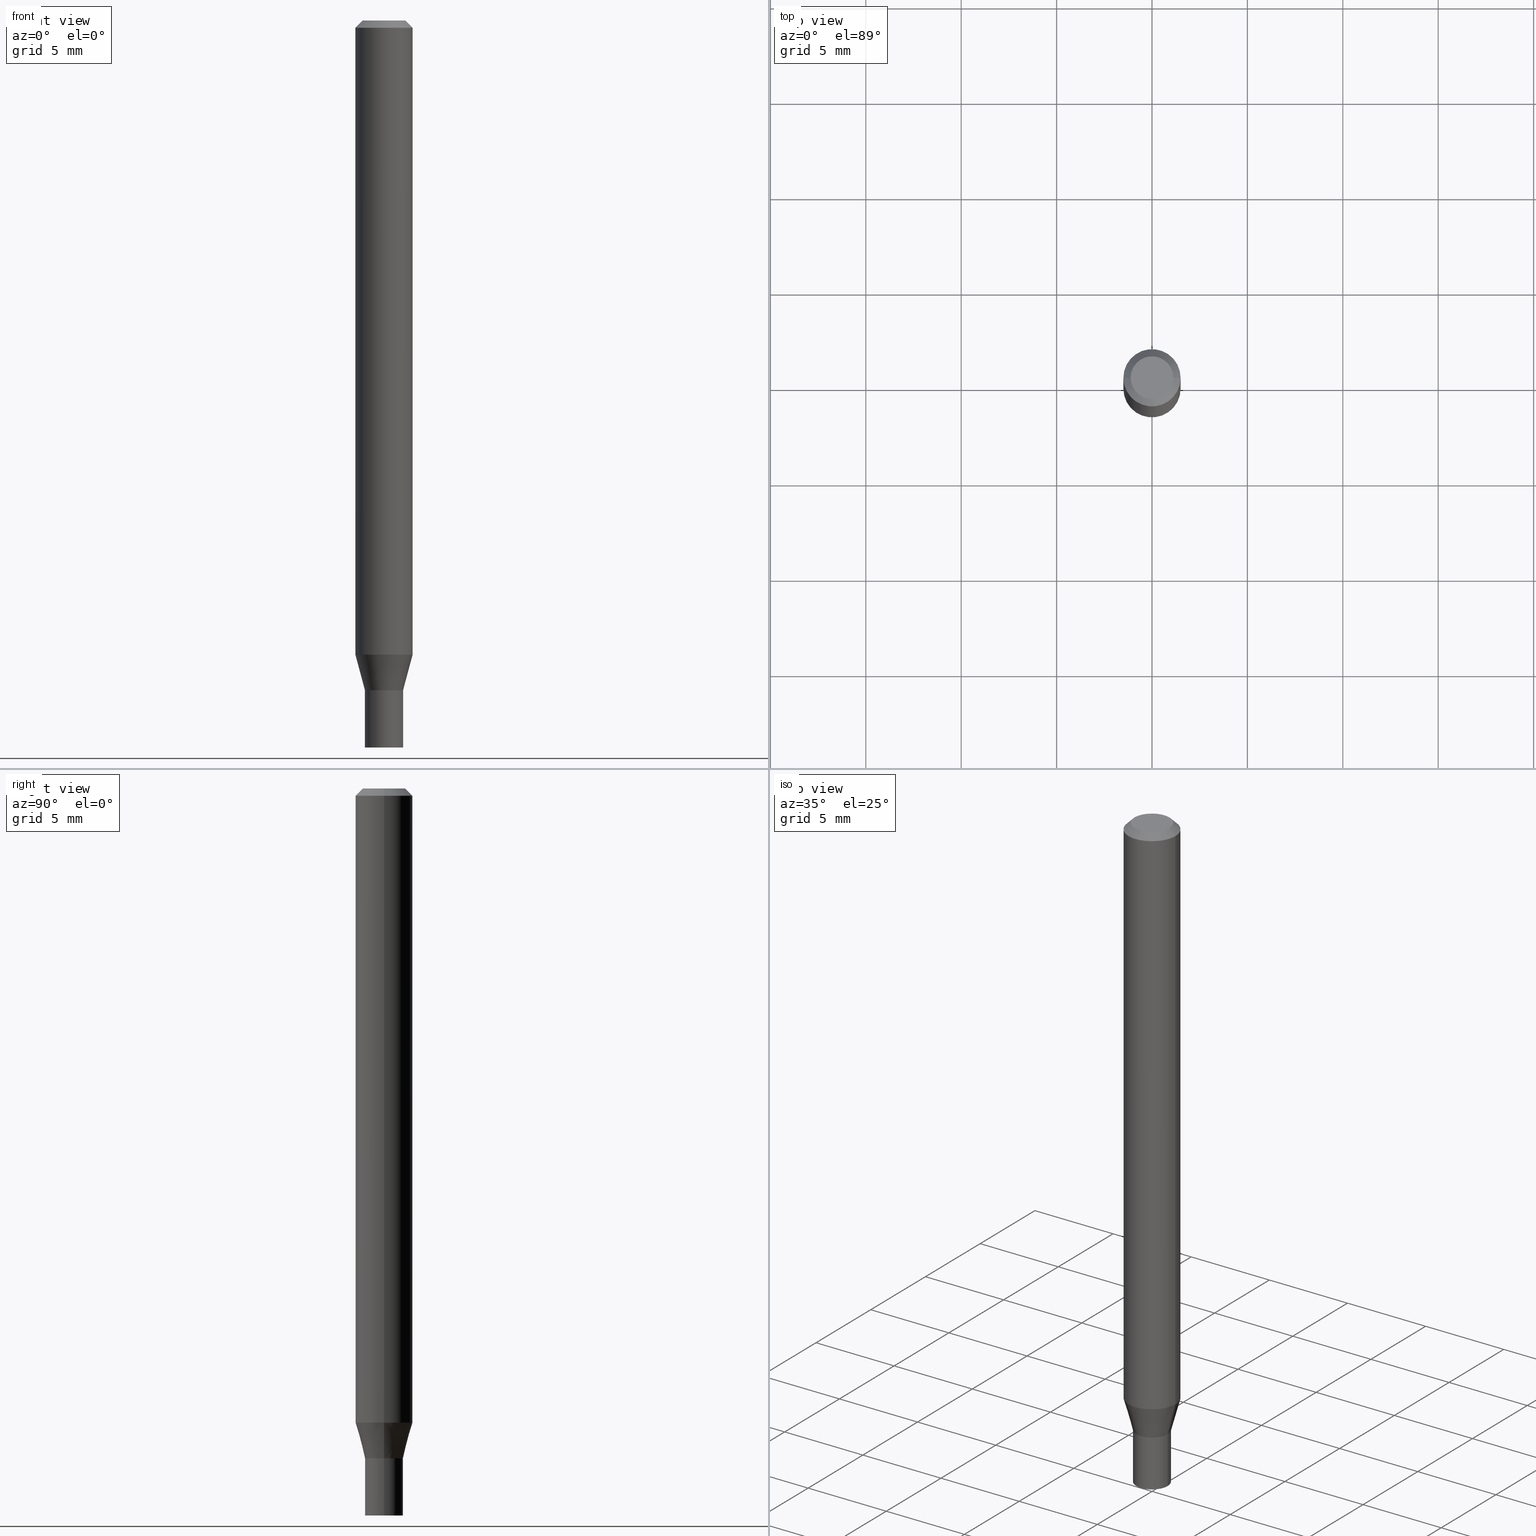
[diagram: canonical four-view strip — front | top / right | iso, engineering-drawing reading convention]
A machine part, canonical four-view strip (front | top / right | iso — engineering-drawing reading convention). The complete STEP part file that produces these views, byte-faithful:
ISO-10303-21;
HEADER;
FILE_DESCRIPTION (( 'STEP AP203' ),
    '1' );
FILE_NAME ('05123.STEP',
    '2024-03-14T18:01:29',
    ( '' ),
    ( '' ),
    'SwSTEP 2.0',
    'SolidWorks 2023',
    '' );
FILE_SCHEMA (( 'CONFIG_CONTROL_DESIGN' ));
ENDSEC;

DATA;
#1 = PRODUCT_DEFINITION_SHAPE ( 'NONE', 'NONE',  #325 ) ;
#2 = CONICAL_SURFACE ( 'NONE', #57, 0.03934999999999993364, 0.2617993877991493523 ) ;
#3 = EDGE_CURVE ( 'NONE', #344, #416, #32, .T. ) ;
#4 = CARTESIAN_POINT ( 'NONE',  ( 3.576687321579069994E-29, -5.368277968210015545E-15, -1.500000000000000222 ) ) ;
#5 = DIRECTION ( 'NONE',  ( -1.000000000000000000, 6.982962677686266711E-15, 0.000000000000000000 ) ) ;
#6 = ORIENTED_EDGE ( 'NONE', *, *, #408, .F. ) ;
#7 = CONICAL_SURFACE ( 'NONE', #315, 0.05904999999999999832, 0.7853981633974366217 ) ;
#8 = ORIENTED_EDGE ( 'NONE', *, *, #302, .T. ) ;
#9 = ADVANCED_FACE ( 'NONE', ( #128 ), #277, .T. ) ;
#10 = PERSON_AND_ORGANIZATION ( #350, #383 ) ;
#11 = APPLICATION_CONTEXT ( 'configuration controlled 3d designs of mechanical parts and assemblies' ) ;
#12 = PERSON_AND_ORGANIZATION ( #350, #383 ) ;
#13 = ORIENTED_EDGE ( 'NONE', *, *, #371, .F. ) ;
#14 =( NAMED_UNIT ( * ) SI_UNIT ( $, .STERADIAN. ) SOLID_ANGLE_UNIT ( ) );
#15 = EDGE_CURVE ( 'NONE', #55, #379, #212, .T. ) ;
#16 = VERTEX_POINT ( 'NONE', #236 ) ;
#17 = DATE_AND_TIME ( #441, #398 ) ;
#18 = AXIS2_PLACEMENT_3D ( 'NONE', #88, #449, #452 ) ;
#19 = COORDINATED_UNIVERSAL_TIME_OFFSET ( 5, 0, .BEHIND. ) ;
#20 = VERTEX_POINT ( 'NONE', #427 ) ;
#21 = DIRECTION ( 'NONE',  ( 2.445468806185136597E-29, -3.491481338843145583E-15, -1.000000000000000000 ) ) ;
#22 = CARTESIAN_POINT ( 'NONE',  ( 3.668203209277705088E-31, -5.237222008264718399E-17, -0.01499999999999999944 ) ) ;
#23 = VECTOR ( 'NONE', #318, 39.37007874015748854 ) ;
#24 = PERSON_AND_ORGANIZATION_ROLE ( 'classification_officer' ) ;
#25 = PLANE ( 'NONE',  #403 ) ;
#26 = DIRECTION ( 'NONE',  ( -2.445468806185136877E-29, 3.491481338843145188E-15, 1.000000000000000000 ) ) ;
#27 = DIRECTION ( 'NONE',  ( 1.000000000000000000, -6.982962677686265922E-15, 4.876176775795935793E-29 ) ) ;
#28 = ADVANCED_FACE ( 'NONE', ( #232 ), #71, .T. ) ;
#29 = LINE ( 'NONE', #33, #167 ) ;
#30 = CIRCLE ( 'NONE', #150, 0.03935000000000000303 ) ;
#31 = DIRECTION ( 'NONE',  ( -2.445468806185136597E-29, 3.491481338843145583E-15, 1.000000000000000000 ) ) ;
#32 = CIRCLE ( 'NONE', #151, 0.03885000000000000259 ) ;
#33 = CARTESIAN_POINT ( 'NONE',  ( -0.03885000000000000259, -4.548832209304543971E-15, -1.381900000000000128 ) ) ;
#34 = APPLICATION_CONTEXT ( 'configuration controlled 3d designs of mechanical parts and assemblies' ) ;
#35 = DIRECTION ( 'NONE',  ( -2.445468806185136877E-29, 3.491481338843145188E-15, 1.000000000000000000 ) ) ;
#36 = APPROVAL ( #377, 'UNSPECIFIED' ) ;
#37 = AXIS2_PLACEMENT_3D ( 'NONE', #282, #273, #431 ) ;
#38 = CARTESIAN_POINT ( 'NONE',  ( 0.03934999999999993364, -5.099657643514298173E-15, -1.381900000000000350 ) ) ;
#39 = ADVANCED_FACE ( 'NONE', ( #391 ), #158, .F. ) ;
#40 = DIRECTION ( 'NONE',  ( -2.445468806185136597E-29, 3.491481338843145583E-15, 1.000000000000000000 ) ) ;
#41 = ORIENTED_EDGE ( 'NONE', *, *, #417, .T. ) ;
#42 = CC_DESIGN_PERSON_AND_ORGANIZATION_ASSIGNMENT ( #331, #296, ( #338 ) ) ;
#43 = DIRECTION ( 'NONE',  ( 1.000000000000000000, -6.982962677686256455E-15, 0.000000000000000000 ) ) ;
#44 = CIRCLE ( 'NONE', #37, 0.03934999999999992670 ) ;
#45 = CC_DESIGN_APPROVAL ( #36, ( #325 ) ) ;
#46 = VERTEX_POINT ( 'NONE', #238 ) ;
#47 = ORIENTED_EDGE ( 'NONE', *, *, #264, .F. ) ;
#48 = COORDINATED_UNIVERSAL_TIME_OFFSET ( 5, 0, .BEHIND. ) ;
#49 = DIRECTION ( 'NONE',  ( -2.445468806185136597E-29, 3.491481338843145583E-15, 1.000000000000000000 ) ) ;
#50 = VECTOR ( 'NONE', #242, 39.37007874015748854 ) ;
#51 = CARTESIAN_POINT ( 'NONE',  ( 3.379393343267241015E-29, -4.824878062147344045E-15, -1.381900000000000350 ) ) ;
#52 = VECTOR ( 'NONE', #26, 39.37007874015748143 ) ;
#53 = VERTEX_POINT ( 'NONE', #126 ) ;
#54 = EDGE_LOOP ( 'NONE', ( #219, #439, #313, #351 ) ) ;
#55 = VERTEX_POINT ( 'NONE', #123 ) ;
#56 = DIRECTION ( 'NONE',  ( 1.000000000000000000, -6.982962677686256455E-15, 0.000000000000000000 ) ) ;
#57 = AXIS2_PLACEMENT_3D ( 'NONE', #51, #153, #43 ) ;
#58 = CARTESIAN_POINT ( 'NONE',  ( 3.379393343267239894E-29, -4.824878062147343257E-15, -1.381900000000000128 ) ) ;
#59 = LINE ( 'NONE', #463, #50 ) ;
#60 = ADVANCED_FACE ( 'NONE', ( #204 ), #136, .T. ) ;
#61 = DIRECTION ( 'NONE',  ( 1.000000000000000000, -6.982962677686266711E-15, 4.876176775795936353E-29 ) ) ;
#62 = FACE_OUTER_BOUND ( 'NONE', #112, .T. ) ;
#63 = DIRECTION ( 'NONE',  ( 1.000000000000000000, -6.982962677686265922E-15, 4.819687581474398999E-29 ) ) ;
#64 = AXIS2_PLACEMENT_3D ( 'NONE', #312, #349, #202 ) ;
#65 = CYLINDRICAL_SURFACE ( 'NONE', #84, 0.03935000000000000303 ) ;
#66 = EDGE_CURVE ( 'NONE', #16, #298, #163, .T. ) ;
#67 = CARTESIAN_POINT ( 'NONE',  ( 3.379393343267241015E-29, -4.824878062147344045E-15, -1.381900000000000350 ) ) ;
#68 = EDGE_CURVE ( 'NONE', #46, #222, #386, .T. ) ;
#69 = DIRECTION ( 'NONE',  ( 0.7071067811865392461, -7.319954787623227646E-15, -0.7071067811865557884 ) ) ;
#70 = VECTOR ( 'NONE', #281, 39.37007874015748143 ) ;
#71 = CONICAL_SURFACE ( 'NONE', #148, 0.05904999999999999832, 0.7853981633974366217 ) ;
#72 = DIRECTION ( 'NONE',  ( 2.445468806185136597E-29, -3.491481338843145583E-15, -1.000000000000000000 ) ) ;
#73 = EDGE_CURVE ( 'NONE', #53, #55, #231, .T. ) ;
#74 = VERTEX_POINT ( 'NONE', #311 ) ;
#75 = DIRECTION ( 'NONE',  ( 0.000000000000000000, 0.000000000000000000, 1.000000000000000000 ) ) ;
#76 = DIRECTION ( 'NONE',  ( 1.000000000000000000, -6.982962677686266711E-15, 4.876176775795936353E-29 ) ) ;
#77 = ORIENTED_EDGE ( 'NONE', *, *, #210, .F. ) ;
#78 = DIRECTION ( 'NONE',  ( 1.000000000000000000, 0.000000000000000000, 0.000000000000000000 ) ) ;
#79 = CIRCLE ( 'NONE', #160, 0.03935000000000000303 ) ;
#80 = EDGE_LOOP ( 'NONE', ( #418, #443 ) ) ;
#81 = MECHANICAL_CONTEXT ( 'NONE', #11, 'mechanical' ) ;
#82 = ORIENTED_EDGE ( 'NONE', *, *, #297, .F. ) ;
#83 = DATE_AND_TIME ( #121, #171 ) ;
#84 = AXIS2_PLACEMENT_3D ( 'NONE', #205, #31, #133 ) ;
#85 = CALENDAR_DATE ( 2024, 14, 3 ) ;
#86 = EDGE_CURVE ( 'NONE', #298, #20, #109, .T. ) ;
#87 = CARTESIAN_POINT ( 'NONE',  ( 0.03934999999999993364, -2.747795813669541281E-16, 1.918775561275697570E-30 ) ) ;
#88 = CARTESIAN_POINT ( 'NONE',  ( 3.379393343267239894E-29, -4.824878062147343257E-15, -1.381900000000000128 ) ) ;
#89 = PERSON_AND_ORGANIZATION ( #350, #383 ) ;
#90 = FACE_OUTER_BOUND ( 'NONE', #407, .T. ) ;
#91 = CLOSED_SHELL ( 'NONE', ( #423, #60, #28, #278, #454, #428, #415, #118, #218, #334, #203, #39 ) ) ;
#92 = AXIS2_PLACEMENT_3D ( 'NONE', #98, #243, #274 ) ;
#93 = CC_DESIGN_SECURITY_CLASSIFICATION ( #361, ( #338 ) ) ;
#94 = DIRECTION ( 'NONE',  ( -2.445468806185136597E-29, 3.491481338843145583E-15, 1.000000000000000000 ) ) ;
#95 = DIRECTION ( 'NONE',  ( -1.000000000000000000, 6.982962677686266711E-15, 0.000000000000000000 ) ) ;
#96 = DIRECTION ( 'NONE',  ( -2.445468806185136597E-29, 3.491481338843145583E-15, 1.000000000000000000 ) ) ;
#97 = CARTESIAN_POINT ( 'NONE',  ( 3.379393343267241015E-29, -4.824878062147344045E-15, -1.381900000000000350 ) ) ;
#98 = CARTESIAN_POINT ( 'NONE',  ( 0.000000000000000000, 0.000000000000000000, 0.000000000000000000 ) ) ;
#99 = EDGE_CURVE ( 'NONE', #216, #20, #106, .T. ) ;
#100 = DIRECTION ( 'NONE',  ( 1.000000000000000000, -6.982962677686269077E-15, 0.000000000000000000 ) ) ;
#101 = AXIS2_PLACEMENT_3D ( 'NONE', #247, #464, #175 ) ;
#102 = LINE ( 'NONE', #38, #23 ) ;
#103 = PRODUCT ( '05123', '05123', '', ( #81 ) ) ;
#104 = CARTESIAN_POINT ( 'NONE',  ( -8.641182519006283330E-45, 1.233731848647590289E-30, 3.533548453838708869E-16 ) ) ;
#105 = ADVANCED_FACE ( 'NONE', ( #401 ), #208, .F. ) ;
#106 = LINE ( 'NONE', #324, #70 ) ;
#107 = ORIENTED_EDGE ( 'NONE', *, *, #289, .T. ) ;
#108 = EDGE_CURVE ( 'NONE', #253, #379, #355, .T. ) ;
#109 = CIRCLE ( 'NONE', #199, 0.05904999999999999832 ) ;
#110 = CIRCLE ( 'NONE', #382, 0.03934999999999993364 ) ;
#111 = ORIENTED_EDGE ( 'NONE', *, *, #302, .F. ) ;
#112 = EDGE_LOOP ( 'NONE', ( #183, #341, #328, #187 ) ) ;
#113 =( NAMED_UNIT ( * ) PLANE_ANGLE_UNIT ( ) SI_UNIT ( $, .RADIAN. ) );
#114 = ORIENTED_EDGE ( 'NONE', *, *, #68, .F. ) ;
#115 = CC_DESIGN_PERSON_AND_ORGANIZATION_ASSIGNMENT ( #410, #444, ( #325 ) ) ;
#116 = ORIENTED_EDGE ( 'NONE', *, *, #445, .F. ) ;
#117 = APPROVAL_ROLE ( '' ) ;
#118 = ADVANCED_FACE ( 'NONE', ( #285 ), #7, .T. ) ;
#119 = CARTESIAN_POINT ( 'NONE',  ( 3.199599050756987901E-29, -4.568179462867591539E-15, -1.308378599090893157 ) ) ;
#120 = ORIENTED_EDGE ( 'NONE', *, *, #411, .F. ) ;
#121 = CALENDAR_DATE ( 2024, 14, 3 ) ;
#122 = ORIENTED_EDGE ( 'NONE', *, *, #319, .T. ) ;
#123 = CARTESIAN_POINT ( 'NONE',  ( -0.03935000000000000303, -4.751451468684432505E-15, -1.381900000000000128 ) ) ;
#124 = EDGE_LOOP ( 'NONE', ( #107, #291, #438, #192 ) ) ;
#125 = CARTESIAN_POINT ( 'NONE',  ( 3.379393343267241015E-29, -4.824878062147344045E-15, -1.381900000000000350 ) ) ;
#126 = CARTESIAN_POINT ( 'NONE',  ( -0.03935000000000000303, -4.751451468684432505E-15, -1.500000000000000222 ) ) ;
#127 = FACE_OUTER_BOUND ( 'NONE', #326, .T. ) ;
#128 = FACE_OUTER_BOUND ( 'NONE', #54, .T. ) ;
#129 = AXIS2_PLACEMENT_3D ( 'NONE', #288, #40, #360 ) ;
#130 = LOCAL_TIME ( 14, 1, 29.00000000000000000, #455 ) ;
#131 = CYLINDRICAL_SURFACE ( 'NONE', #346, 0.05904999999999999832 ) ;
#132 = DIRECTION ( 'NONE',  ( -1.000000000000000000, 6.982962677686265922E-15, -4.876176775795935793E-29 ) ) ;
#133 = DIRECTION ( 'NONE',  ( 1.000000000000000000, -6.982962677686266711E-15, 4.876176775795936353E-29 ) ) ;
#134 = CARTESIAN_POINT ( 'NONE',  ( 0.03934999999999992670, -5.097911902844875881E-15, -1.381400000000000183 ) ) ;
#135 = CARTESIAN_POINT ( 'NONE',  ( -0.05904999999999999832, -4.148603977401252046E-15, -1.308378599090893157 ) ) ;
#136 = CONICAL_SURFACE ( 'NONE', #461, 0.03885000000000000259, 0.7853981633974739252 ) ;
#137 = CARTESIAN_POINT ( 'NONE',  ( 3.075995059520799729E-16, 0.04404999999999999888, 2.287766971589489619E-17 ) ) ;
#138 = LINE ( 'NONE', #213, #425 ) ;
#139 = EDGE_LOOP ( 'NONE', ( #47, #255, #8, #409 ) ) ;
#140 = CIRCLE ( 'NONE', #459, 0.05904999999999999832 ) ;
#141 = ORIENTED_EDGE ( 'NONE', *, *, #375, .T. ) ;
#142 = DIRECTION ( 'NONE',  ( -2.445468806185136597E-29, 3.491481338843145583E-15, 1.000000000000000000 ) ) ;
#143 = EDGE_LOOP ( 'NONE', ( #77, #146, #155, #447 ) ) ;
#144 = LENGTH_MEASURE_WITH_UNIT ( LENGTH_MEASURE( 0.02539999999999999897 ), #336 );
#145 = EDGE_CURVE ( 'NONE', #413, #74, #138, .T. ) ;
#146 = ORIENTED_EDGE ( 'NONE', *, *, #180, .F. ) ;
#147 = CALENDAR_DATE ( 2024, 14, 3 ) ;
#148 = AXIS2_PLACEMENT_3D ( 'NONE', #168, #21, #95 ) ;
#149 = LINE ( 'NONE', #356, #435 ) ;
#150 = AXIS2_PLACEMENT_3D ( 'NONE', #436, #430, #100 ) ;
#151 = AXIS2_PLACEMENT_3D ( 'NONE', #162, #261, #56 ) ;
#152 = ORIENTED_EDGE ( 'NONE', *, *, #267, .T. ) ;
#153 = DIRECTION ( 'NONE',  ( -2.445468806185136597E-29, 3.491481338843145583E-15, 1.000000000000000000 ) ) ;
#154 = DIRECTION ( 'NONE',  ( 1.000000000000000000, -6.982962677686266711E-15, 4.876176775795936353E-29 ) ) ;
#155 = ORIENTED_EDGE ( 'NONE', *, *, #66, .T. ) ;
#156 = APPLICATION_PROTOCOL_DEFINITION ( 'international standard', 'config_control_design', 1994, #11 ) ;
#157 = MANIFOLD_SOLID_BREP ( 'Body-Move/Copy2[1]', #362 ) ;
#158 = CYLINDRICAL_SURFACE ( 'NONE', #308, 0.03934999999999993364 ) ;
#159 = COORDINATED_UNIVERSAL_TIME_OFFSET ( 5, 0, .BEHIND. ) ;
#160 = AXIS2_PLACEMENT_3D ( 'NONE', #174, #320, #466 ) ;
#161 = ORIENTED_EDGE ( 'NONE', *, *, #3, .F. ) ;
#162 = CARTESIAN_POINT ( 'NONE',  ( 3.379393343267239894E-29, -4.824878062147343257E-15, -1.381900000000000128 ) ) ;
#163 = LINE ( 'NONE', #347, #252 ) ;
#164 = DIRECTION ( 'NONE',  ( 0.7071067811865656694, -2.468850131082446387E-15, 0.7071067811865294761 ) ) ;
#165 = DIRECTION ( 'NONE',  ( -2.438088387897960049E-29, 3.491481338843145188E-15, 1.000000000000000000 ) ) ;
#166 = FACE_OUTER_BOUND ( 'NONE', #440, .T. ) ;
#167 = VECTOR ( 'NONE', #314, 39.37007874015748143 ) ;
#168 = CARTESIAN_POINT ( 'NONE',  ( 3.668203209277705088E-31, -5.237222008264718399E-17, -0.01499999999999999944 ) ) ;
#169 = CIRCLE ( 'NONE', #284, 0.05904999999999999832 ) ;
#170 = DATE_AND_TIME ( #85, #405 ) ;
#171 = LOCAL_TIME ( 14, 1, 29.00000000000000000, #19 ) ;
#172 = DIRECTION ( 'NONE',  ( 1.000000000000000000, -6.982962677686258033E-15, 0.000000000000000000 ) ) ;
#173 = CARTESIAN_POINT ( 'NONE',  ( 3.199599050756987901E-29, -4.568179462867591539E-15, -1.308378599090893157 ) ) ;
#174 = CARTESIAN_POINT ( 'NONE',  ( 3.379393343267239894E-29, -4.824878062147343257E-15, -1.381900000000000128 ) ) ;
#175 = DIRECTION ( 'NONE',  ( 1.000000000000000000, -6.982962677686265922E-15, 4.819687581474398999E-29 ) ) ;
#176 = AXIS2_PLACEMENT_3D ( 'NONE', #303, #195, #154 ) ;
#177 = DIRECTION ( 'NONE',  ( 2.438088387897960049E-29, -3.491481338843145188E-15, -1.000000000000000000 ) ) ;
#178 = ORIENTED_EDGE ( 'NONE', *, *, #402, .F. ) ;
#179 = ORIENTED_EDGE ( 'NONE', *, *, #375, .F. ) ;
#180 = EDGE_CURVE ( 'NONE', #16, #340, #327, .T. ) ;
#181 = APPROVAL_DATE_TIME ( #17, #384 ) ;
#182 = CONICAL_SURFACE ( 'NONE', #196, 0.03934999999999993364, 0.2617993877991493523 ) ;
#183 = ORIENTED_EDGE ( 'NONE', *, *, #380, .T. ) ;
#184 = CARTESIAN_POINT ( 'NONE',  ( 3.379393343267239894E-29, -4.824878062147343257E-15, -1.381900000000000128 ) ) ;
#185 = EDGE_LOOP ( 'NONE', ( #6, #41, #122, #120 ) ) ;
#186 = EDGE_LOOP ( 'NONE', ( #13, #141, #385, #116 ) ) ;
#187 = ORIENTED_EDGE ( 'NONE', *, *, #108, .F. ) ;
#188 = DIRECTION ( 'NONE',  ( 1.000000000000000000, -6.982962677686256455E-15, 0.000000000000000000 ) ) ;
#189 = ORIENTED_EDGE ( 'NONE', *, *, #339, .T. ) ;
#190 = CIRCLE ( 'NONE', #437, 0.03934999999999993364 ) ;
#191 = FACE_OUTER_BOUND ( 'NONE', #258, .T. ) ;
#192 = ORIENTED_EDGE ( 'NONE', *, *, #215, .F. ) ;
#193 = APPLICATION_PROTOCOL_DEFINITION ( 'international standard', 'config_control_design', 1994, #34 ) ;
#194 = EDGE_LOOP ( 'NONE', ( #263, #268, #178, #223 ) ) ;
#195 = DIRECTION ( 'NONE',  ( -2.445468806185136597E-29, 3.491481338843145583E-15, 1.000000000000000000 ) ) ;
#196 = AXIS2_PLACEMENT_3D ( 'NONE', #67, #220, #188 ) ;
#197 = ORIENTED_EDGE ( 'NONE', *, *, #86, .F. ) ;
#198 = DIRECTION ( 'NONE',  ( 1.000000000000000000, -6.982962677686266711E-15, 4.876176775795935793E-29 ) ) ;
#199 = AXIS2_PLACEMENT_3D ( 'NONE', #22, #309, #323 ) ;
#200 = CC_DESIGN_PERSON_AND_ORGANIZATION_ASSIGNMENT ( #12, #381, ( #103 ) ) ;
#201 = APPROVAL ( #394, 'UNSPECIFIED' ) ;
#202 = DIRECTION ( 'NONE',  ( 1.000000000000000000, -6.982962677686269077E-15, 0.000000000000000000 ) ) ;
#203 = ADVANCED_FACE ( 'NONE', ( #363 ), #412, .T. ) ;
#204 = FACE_OUTER_BOUND ( 'NONE', #194, .T. ) ;
#205 = CARTESIAN_POINT ( 'NONE',  ( 0.000000000000000000, 0.000000000000000000, 0.000000000000000000 ) ) ;
#206 = AXIS2_PLACEMENT_3D ( 'NONE', #184, #373, #433 ) ;
#207 = CARTESIAN_POINT ( 'NONE',  ( 3.378170608864148213E-29, -4.823132321477921753E-15, -1.381400000000000183 ) ) ;
#208 = PLANE ( 'NONE',  #250 ) ;
#209 = CARTESIAN_POINT ( 'NONE',  ( 0.05904999999999999832, -4.980523408984964882E-15, -1.308378599090893157 ) ) ;
#210 = EDGE_CURVE ( 'NONE', #340, #20, #358, .T. ) ;
#211 = APPROVAL_PERSON_ORGANIZATION ( #300, #36, #342 ) ;
#212 = CIRCLE ( 'NONE', #18, 0.03935000000000000303 ) ;
#213 = CARTESIAN_POINT ( 'NONE',  ( -0.03934999999999993364, 2.795985665215989516E-16, -1.935600958015302139E-30 ) ) ;
#214 = ORIENTED_EDGE ( 'NONE', *, *, #289, .F. ) ;
#215 = EDGE_CURVE ( 'NONE', #46, #216, #102, .T. ) ;
#216 = VERTEX_POINT ( 'NONE', #209 ) ;
#217 = DATE_TIME_ROLE ( 'creation_date' ) ;
#218 = ADVANCED_FACE ( 'NONE', ( #245 ), #246, .F. ) ;
#219 = ORIENTED_EDGE ( 'NONE', *, *, #73, .F. ) ;
#220 = DIRECTION ( 'NONE',  ( -2.445468806185136597E-29, 3.491481338843145583E-15, 1.000000000000000000 ) ) ;
#221 = AXIS2_PLACEMENT_3D ( 'NONE', #104, #400, #63 ) ;
#222 = VERTEX_POINT ( 'NONE', #134 ) ;
#223 = ORIENTED_EDGE ( 'NONE', *, *, #319, .F. ) ;
#224 = CARTESIAN_POINT ( 'NONE',  ( 0.000000000000000000, 0.000000000000000000, 0.000000000000000000 ) ) ;
#225 = CARTESIAN_POINT ( 'NONE',  ( 3.668203209277705088E-31, -5.237222008264718399E-17, -0.01499999999999999944 ) ) ;
#226 = ORIENTED_EDGE ( 'NONE', *, *, #99, .T. ) ;
#227 = FACE_OUTER_BOUND ( 'NONE', #124, .T. ) ;
#228 = APPROVAL_PERSON_ORGANIZATION ( #306, #201, #239 ) ;
#229 = CARTESIAN_POINT ( 'NONE',  ( 0.000000000000000000, 0.000000000000000000, 0.000000000000000000 ) ) ;
#230 = SHAPE_DEFINITION_REPRESENTATION ( #1, #266 ) ;
#231 = LINE ( 'NONE', #387, #299 ) ;
#232 = FACE_OUTER_BOUND ( 'NONE', #139, .T. ) ;
#233 = CARTESIAN_POINT ( 'NONE',  ( -0.05904999999999999832, -1.890700356008780013E-15, -0.01499999999999999944 ) ) ;
#234 = AXIS2_PLACEMENT_3D ( 'NONE', #207, #397, #172 ) ;
#235 = AXIS2_PLACEMENT_3D ( 'NONE', #224, #75, #78 ) ;
#236 = CARTESIAN_POINT ( 'NONE',  ( -0.04404999999999999888, 3.337856159934040055E-16, 3.533548453838686682E-16 ) ) ;
#237 = CARTESIAN_POINT ( 'NONE',  ( 0.03935000000000000303, -5.099657643514298173E-15, -1.381900000000000128 ) ) ;
#238 = CARTESIAN_POINT ( 'NONE',  ( 0.03934999999999993364, -5.099657643514298173E-15, -1.381900000000000350 ) ) ;
#239 = APPROVAL_ROLE ( '' ) ;
#240 = CARTESIAN_POINT ( 'NONE',  ( 0.04404999999999999888, -3.798447818264454163E-16, 3.533548453838733521E-16 ) ) ;
#241 = CC_DESIGN_DATE_AND_TIME_ASSIGNMENT ( #256, #217, ( #325 ) ) ;
#242 = DIRECTION ( 'NONE',  ( -0.2588190451025206285, 5.211531920934544731E-15, 0.9659258262890682012 ) ) ;
#243 = DIRECTION ( 'NONE',  ( -2.445468806185136597E-29, 3.491481338843145583E-15, 1.000000000000000000 ) ) ;
#244 = AXIS2_PLACEMENT_3D ( 'NONE', #353, #165, #27 ) ;
#245 = FACE_OUTER_BOUND ( 'NONE', #366, .T. ) ;
#246 = PLANE ( 'NONE',  #275 ) ;
#247 = CARTESIAN_POINT ( 'NONE',  ( -8.641182519006283330E-45, 1.233731848647590289E-30, 3.533548453838708869E-16 ) ) ;
#248 = DIRECTION ( 'NONE',  ( 1.000000000000000000, -6.982962677686265922E-15, 4.876176775795935793E-29 ) ) ;
#249 = ORIENTED_EDGE ( 'NONE', *, *, #145, .T. ) ;
#250 = AXIS2_PLACEMENT_3D ( 'NONE', #4, #322, #248 ) ;
#251 = EDGE_CURVE ( 'NONE', #53, #253, #30, .T. ) ;
#252 = VECTOR ( 'NONE', #265, 39.37007874015748143 ) ;
#253 = VERTEX_POINT ( 'NONE', #396 ) ;
#254 = ORIENTED_EDGE ( 'NONE', *, *, #402, .T. ) ;
#255 = ORIENTED_EDGE ( 'NONE', *, *, #210, .T. ) ;
#256 = DATE_AND_TIME ( #147, #451 ) ;
#257 = CIRCLE ( 'NONE', #64, 0.03935000000000000303 ) ;
#258 = EDGE_LOOP ( 'NONE', ( #189, #406, #111, #370 ) ) ;
#259 =( CONVERSION_BASED_UNIT ( 'INCH', #144 ) LENGTH_UNIT ( ) NAMED_UNIT ( #270 ) );
#260 = LINE ( 'NONE', #421, #442 ) ;
#261 = DIRECTION ( 'NONE',  ( -2.445468806185136597E-29, 3.491481338843145583E-15, 1.000000000000000000 ) ) ;
#262 = COORDINATED_UNIVERSAL_TIME_OFFSET ( 5, 0, .BEHIND. ) ;
#263 = ORIENTED_EDGE ( 'NONE', *, *, #3, .T. ) ;
#264 = EDGE_CURVE ( 'NONE', #340, #16, #337, .T. ) ;
#265 = DIRECTION ( 'NONE',  ( -0.7071067811865392461, 2.468850131082170286E-15, -0.7071067811865557884 ) ) ;
#266 = ADVANCED_BREP_SHAPE_REPRESENTATION ( '05123', ( #157, #465, #235 ), #301 ) ;
#267 = EDGE_CURVE ( 'NONE', #379, #55, #79, .T. ) ;
#268 = ORIENTED_EDGE ( 'NONE', *, *, #408, .T. ) ;
#269 = DATE_AND_TIME ( #279, #130 ) ;
#270 = DIMENSIONAL_EXPONENTS ( 1.000000000000000000, 0.000000000000000000, 0.000000000000000000, 0.000000000000000000, 0.000000000000000000, 0.000000000000000000, 0.000000000000000000 ) ;
#271 = DIRECTION ( 'NONE',  ( 1.000000000000000000, -6.982962677686256455E-15, 0.000000000000000000 ) ) ;
#272 = CYLINDRICAL_SURFACE ( 'NONE', #176, 0.05904999999999999832 ) ;
#273 = DIRECTION ( 'NONE',  ( -2.445468806185136597E-29, 3.491481338843145583E-15, 1.000000000000000000 ) ) ;
#274 = DIRECTION ( 'NONE',  ( 1.000000000000000000, -6.982962677686266711E-15, 4.876176775795935793E-29 ) ) ;
#275 = AXIS2_PLACEMENT_3D ( 'NONE', #137, #177, #132 ) ;
#276 = VERTEX_POINT ( 'NONE', #135 ) ;
#277 = CYLINDRICAL_SURFACE ( 'NONE', #458, 0.03935000000000000303 ) ;
#278 = ADVANCED_FACE ( 'NONE', ( #191 ), #272, .T. ) ;
#279 = CALENDAR_DATE ( 2024, 14, 3 ) ;
#280 = DIRECTION ( 'NONE',  ( -2.445468806185136597E-29, 3.491481338843145583E-15, 1.000000000000000000 ) ) ;
#281 = DIRECTION ( 'NONE',  ( -2.445468806185136877E-29, 3.491481338843145188E-15, 1.000000000000000000 ) ) ;
#282 = CARTESIAN_POINT ( 'NONE',  ( 3.378170608864148213E-29, -4.823132321477921753E-15, -1.381400000000000183 ) ) ;
#283 = CARTESIAN_POINT ( 'NONE',  ( 3.668203209277705088E-31, -5.237222008264718399E-17, -0.01499999999999999944 ) ) ;
#284 = AXIS2_PLACEMENT_3D ( 'NONE', #173, #280, #393 ) ;
#285 = FACE_OUTER_BOUND ( 'NONE', #143, .T. ) ;
#286 = ADVANCED_FACE ( 'NONE', ( #90 ), #25, .F. ) ;
#287 = CARTESIAN_POINT ( 'NONE',  ( 0.05904999999999999832, -4.574846268510561447E-16, -0.01499999999999999944 ) ) ;
#288 = CARTESIAN_POINT ( 'NONE',  ( 3.379393343267239894E-29, -4.824878062147343257E-15, -1.381900000000000128 ) ) ;
#289 = EDGE_CURVE ( 'NONE', #46, #413, #190, .T. ) ;
#290 = VECTOR ( 'NONE', #35, 39.37007874015748143 ) ;
#291 = ORIENTED_EDGE ( 'NONE', *, *, #371, .T. ) ;
#292 = CC_DESIGN_APPROVAL ( #201, ( #361 ) ) ;
#293 = ORIENTED_EDGE ( 'NONE', *, *, #417, .F. ) ;
#294 = CARTESIAN_POINT ( 'NONE',  ( -0.03885000000000000259, -4.546182982130432770E-15, -1.381900000000000128 ) ) ;
#295 = ORIENTED_EDGE ( 'NONE', *, *, #68, .T. ) ;
#296 = PERSON_AND_ORGANIZATION_ROLE ( 'creator' ) ;
#297 = EDGE_CURVE ( 'NONE', #276, #298, #260, .T. ) ;
#298 = VERTEX_POINT ( 'NONE', #233 ) ;
#299 = VECTOR ( 'NONE', #345, 39.37007874015748143 ) ;
#300 = PERSON_AND_ORGANIZATION ( #350, #383 ) ;
#301 =( GEOMETRIC_REPRESENTATION_CONTEXT ( 3 ) GLOBAL_UNCERTAINTY_ASSIGNED_CONTEXT ( ( #365 ) ) GLOBAL_UNIT_ASSIGNED_CONTEXT ( ( #259, #113, #14 ) ) REPRESENTATION_CONTEXT ( 'NONE', 'WORKASPACE' ) );
#302 = EDGE_CURVE ( 'NONE', #20, #298, #140, .T. ) ;
#303 = CARTESIAN_POINT ( 'NONE',  ( 0.000000000000000000, 0.000000000000000000, 0.000000000000000000 ) ) ;
#304 = DIRECTION ( 'NONE',  ( 2.438088387897960049E-29, -3.491481338843145188E-15, -1.000000000000000000 ) ) ;
#305 = EDGE_LOOP ( 'NONE', ( #332, #214, #295, #254 ) ) ;
#306 = PERSON_AND_ORGANIZATION ( #350, #383 ) ;
#307 = APPROVAL_PERSON_ORGANIZATION ( #10, #384, #117 ) ;
#308 = AXIS2_PLACEMENT_3D ( 'NONE', #229, #422, #198 ) ;
#309 = DIRECTION ( 'NONE',  ( -2.445468806185136597E-29, 3.491481338843145583E-15, 1.000000000000000000 ) ) ;
#310 = CARTESIAN_POINT ( 'NONE',  ( 2.747795813669883942E-16, 0.03934999999999518050, -1.381900000000000350 ) ) ;
#311 = CARTESIAN_POINT ( 'NONE',  ( -0.03934999999999992670, -4.543533754956323146E-15, -1.381400000000000183 ) ) ;
#312 = CARTESIAN_POINT ( 'NONE',  ( 3.668203209277704895E-29, -5.237222008264718177E-15, -1.500000000000000222 ) ) ;
#313 = ORIENTED_EDGE ( 'NONE', *, *, #108, .T. ) ;
#314 = DIRECTION ( 'NONE',  ( -0.7071067811865656694, 7.493145998870420424E-15, 0.7071067811865294761 ) ) ;
#315 = AXIS2_PLACEMENT_3D ( 'NONE', #283, #72, #5 ) ;
#316 = DIRECTION ( 'NONE',  ( -2.445468806185136597E-29, 3.491481338843145583E-15, 1.000000000000000000 ) ) ;
#317 = CARTESIAN_POINT ( 'NONE',  ( 0.03885000000000000259, -5.096166162175454377E-15, -1.381900000000000128 ) ) ;
#318 = DIRECTION ( 'NONE',  ( 0.2588190451025206285, 1.565188264969627095E-15, 0.9659258262890682012 ) ) ;
#319 = EDGE_CURVE ( 'NONE', #344, #222, #149, .T. ) ;
#320 = DIRECTION ( 'NONE',  ( -2.445468806185136597E-29, 3.491481338843145583E-15, 1.000000000000000000 ) ) ;
#321 = AXIS2_PLACEMENT_3D ( 'NONE', #119, #142, #372 ) ;
#322 = DIRECTION ( 'NONE',  ( -2.438088387897960049E-29, 3.491481338843145188E-15, 1.000000000000000000 ) ) ;
#323 = DIRECTION ( 'NONE',  ( 1.000000000000000000, -6.982962677686266711E-15, 0.000000000000000000 ) ) ;
#324 = CARTESIAN_POINT ( 'NONE',  ( 0.05904999999999999832, -4.123439461173740327E-16, 2.879382386107500220E-30 ) ) ;
#325 = PRODUCT_DEFINITION ( 'UNKNOWN', '', #338, #330 ) ;
#326 = EDGE_LOOP ( 'NONE', ( #82, #374, #226, #197 ) ) ;
#327 = CIRCLE ( 'NONE', #101, 0.04404999999999999888 ) ;
#328 = ORIENTED_EDGE ( 'NONE', *, *, #267, .F. ) ;
#329 = CC_DESIGN_APPROVAL ( #384, ( #338 ) ) ;
#330 = DESIGN_CONTEXT ( 'detailed design', #34, 'design' ) ;
#331 = PERSON_AND_ORGANIZATION ( #350, #383 ) ;
#332 = ORIENTED_EDGE ( 'NONE', *, *, #145, .F. ) ;
#333 = EDGE_LOOP ( 'NONE', ( #161, #293 ) ) ;
#334 = ADVANCED_FACE ( 'NONE', ( #456 ), #429, .F. ) ;
#335 = ORIENTED_EDGE ( 'NONE', *, *, #264, .T. ) ;
#336 =( LENGTH_UNIT ( ) NAMED_UNIT ( * ) SI_UNIT ( $, .METRE. ) );
#337 = CIRCLE ( 'NONE', #221, 0.04404999999999999888 ) ;
#338 = PRODUCT_DEFINITION_FORMATION_WITH_SPECIFIED_SOURCE ( 'ANY', '', #103, .NOT_KNOWN. ) ;
#339 = EDGE_CURVE ( 'NONE', #216, #276, #169, .T. ) ;
#340 = VERTEX_POINT ( 'NONE', #240 ) ;
#341 = ORIENTED_EDGE ( 'NONE', *, *, #73, .T. ) ;
#342 = APPROVAL_ROLE ( '' ) ;
#343 = CARTESIAN_POINT ( 'NONE',  ( 0.000000000000000000, 0.000000000000000000, 0.000000000000000000 ) ) ;
#344 = VERTEX_POINT ( 'NONE', #317 ) ;
#345 = DIRECTION ( 'NONE',  ( -2.445468806185136877E-29, 3.491481338843145188E-15, 1.000000000000000000 ) ) ;
#346 = AXIS2_PLACEMENT_3D ( 'NONE', #426, #94, #76 ) ;
#347 = CARTESIAN_POINT ( 'NONE',  ( -0.05904999999999999832, 3.599717260347268549E-16, -0.01499999999999999944 ) ) ;
#348 = DIRECTION ( 'NONE',  ( -2.445468806185136877E-29, 3.491481338843145188E-15, 1.000000000000000000 ) ) ;
#349 = DIRECTION ( 'NONE',  ( -2.445468806185136597E-29, 3.491481338843145583E-15, 1.000000000000000000 ) ) ;
#350 = PERSON ( 'UNSPECIFIED', 'UNSPECIFIED', 'UNSPECIFIED', ('UNSPECIFIED'), ('UNSPECIFIED'), ('UNSPECIFIED') ) ;
#351 = ORIENTED_EDGE ( 'NONE', *, *, #15, .F. ) ;
#352 = SECURITY_CLASSIFICATION_LEVEL ( 'unclassified' ) ;
#353 = CARTESIAN_POINT ( 'NONE',  ( 3.379393343267239894E-29, -4.824878062147343257E-15, -1.381900000000000128 ) ) ;
#354 = CIRCLE ( 'NONE', #234, 0.03934999999999992670 ) ;
#355 = LINE ( 'NONE', #404, #290 ) ;
#356 = CARTESIAN_POINT ( 'NONE',  ( 0.03885000000000000259, -5.096166162175454377E-15, -1.381900000000000128 ) ) ;
#357 = FACE_OUTER_BOUND ( 'NONE', #186, .T. ) ;
#358 = LINE ( 'NONE', #287, #369 ) ;
#359 = CYLINDRICAL_SURFACE ( 'NONE', #92, 0.03934999999999993364 ) ;
#360 = DIRECTION ( 'NONE',  ( 1.000000000000000000, -6.982962677686256455E-15, 0.000000000000000000 ) ) ;
#361 = SECURITY_CLASSIFICATION ( '', '', #352 ) ;
#362 = CLOSED_SHELL ( 'NONE', ( #392, #105, #9, #286 ) ) ;
#363 = FACE_OUTER_BOUND ( 'NONE', #185, .T. ) ;
#364 = ORIENTED_EDGE ( 'NONE', *, *, #180, .T. ) ;
#365 = UNCERTAINTY_MEASURE_WITH_UNIT (LENGTH_MEASURE( 1.000000000000000082E-05 ), #259, 'distance_accuracy_value', 'NONE');
#366 = EDGE_LOOP ( 'NONE', ( #364, #335 ) ) ;
#367 = APPROVAL_DATE_TIME ( #83, #36 ) ;
#368 = CC_DESIGN_DATE_AND_TIME_ASSIGNMENT ( #269, #388, ( #361 ) ) ;
#369 = VECTOR ( 'NONE', #69, 39.37007874015748143 ) ;
#370 = ORIENTED_EDGE ( 'NONE', *, *, #99, .F. ) ;
#371 = EDGE_CURVE ( 'NONE', #413, #276, #59, .T. ) ;
#372 = DIRECTION ( 'NONE',  ( 1.000000000000000000, -6.982962677686273021E-15, 0.000000000000000000 ) ) ;
#373 = DIRECTION ( 'NONE',  ( -2.445468806185136597E-29, 3.491481338843145583E-15, 1.000000000000000000 ) ) ;
#374 = ORIENTED_EDGE ( 'NONE', *, *, #445, .T. ) ;
#375 = EDGE_CURVE ( 'NONE', #413, #46, #110, .T. ) ;
#376 = APPROVAL_STATUS ( 'not_yet_approved' ) ;
#377 = APPROVAL_STATUS ( 'not_yet_approved' ) ;
#378 = DIRECTION ( 'NONE',  ( -2.445468806185136597E-29, 3.491481338843145583E-15, 1.000000000000000000 ) ) ;
#379 = VERTEX_POINT ( 'NONE', #237 ) ;
#380 = EDGE_CURVE ( 'NONE', #253, #53, #257, .T. ) ;
#381 = PERSON_AND_ORGANIZATION_ROLE ( 'design_owner' ) ;
#382 = AXIS2_PLACEMENT_3D ( 'NONE', #97, #96, #395 ) ;
#383 = ORGANIZATION ( 'UNSPECIFIED', 'UNSPECIFIED', '' ) ;
#384 = APPROVAL ( #376, 'UNSPECIFIED' ) ;
#385 = ORIENTED_EDGE ( 'NONE', *, *, #215, .T. ) ;
#386 = LINE ( 'NONE', #87, #52 ) ;
#387 = CARTESIAN_POINT ( 'NONE',  ( -0.03935000000000000303, 2.795985665215994447E-16, -1.935600958015305291E-30 ) ) ;
#388 = DATE_TIME_ROLE ( 'classification_date' ) ;
#389 = DIRECTION ( 'NONE',  ( 1.000000000000000000, -6.982962677686256455E-15, 0.000000000000000000 ) ) ;
#390 = DIRECTION ( 'NONE',  ( 1.000000000000000000, -6.982962677686266711E-15, 0.000000000000000000 ) ) ;
#391 = FACE_OUTER_BOUND ( 'NONE', #305, .T. ) ;
#392 = ADVANCED_FACE ( 'NONE', ( #62 ), #65, .T. ) ;
#393 = DIRECTION ( 'NONE',  ( 1.000000000000000000, -6.982962677686273021E-15, 0.000000000000000000 ) ) ;
#394 = APPROVAL_STATUS ( 'not_yet_approved' ) ;
#395 = DIRECTION ( 'NONE',  ( 1.000000000000000000, -6.982962677686256455E-15, 0.000000000000000000 ) ) ;
#396 = CARTESIAN_POINT ( 'NONE',  ( 0.03935000000000000303, -5.512001589631673094E-15, -1.500000000000000222 ) ) ;
#397 = DIRECTION ( 'NONE',  ( -2.445468806185136597E-29, 3.491481338843145583E-15, 1.000000000000000000 ) ) ;
#398 = LOCAL_TIME ( 14, 1, 29.00000000000000000, #48 ) ;
#399 = CC_DESIGN_PERSON_AND_ORGANIZATION_ASSIGNMENT ( #414, #446, ( #338 ) ) ;
#400 = DIRECTION ( 'NONE',  ( -2.445468806185136597E-29, 3.491481338843145583E-15, 1.000000000000000000 ) ) ;
#401 = FACE_OUTER_BOUND ( 'NONE', #80, .T. ) ;
#402 = EDGE_CURVE ( 'NONE', #222, #74, #354, .T. ) ;
#403 = AXIS2_PLACEMENT_3D ( 'NONE', #310, #304, #453 ) ;
#404 = CARTESIAN_POINT ( 'NONE',  ( 0.03935000000000000303, -2.747795813669546211E-16, 1.918775561275701074E-30 ) ) ;
#405 = LOCAL_TIME ( 14, 1, 29.00000000000000000, #159 ) ;
#406 = ORIENTED_EDGE ( 'NONE', *, *, #297, .T. ) ;
#407 = EDGE_LOOP ( 'NONE', ( #152, #457 ) ) ;
#408 = EDGE_CURVE ( 'NONE', #416, #74, #29, .T. ) ;
#409 = ORIENTED_EDGE ( 'NONE', *, *, #66, .F. ) ;
#410 = PERSON_AND_ORGANIZATION ( #350, #383 ) ;
#411 = EDGE_CURVE ( 'NONE', #74, #222, #44, .T. ) ;
#412 = CONICAL_SURFACE ( 'NONE', #129, 0.03885000000000000259, 0.7853981633974739252 ) ;
#413 = VERTEX_POINT ( 'NONE', #460 ) ;
#414 = PERSON_AND_ORGANIZATION ( #350, #383 ) ;
#415 = ADVANCED_FACE ( 'NONE', ( #127 ), #131, .T. ) ;
#416 = VERTEX_POINT ( 'NONE', #294 ) ;
#417 = EDGE_CURVE ( 'NONE', #416, #344, #419, .T. ) ;
#418 = ORIENTED_EDGE ( 'NONE', *, *, #380, .F. ) ;
#419 = CIRCLE ( 'NONE', #206, 0.03885000000000000259 ) ;
#420 = DIRECTION ( 'NONE',  ( -2.445468806185136597E-29, 3.491481338843145583E-15, 1.000000000000000000 ) ) ;
#421 = CARTESIAN_POINT ( 'NONE',  ( -0.05904999999999999832, 4.195754854663391478E-16, -2.904631170795521892E-30 ) ) ;
#422 = DIRECTION ( 'NONE',  ( -2.445468806185136597E-29, 3.491481338843145583E-15, 1.000000000000000000 ) ) ;
#423 = ADVANCED_FACE ( 'NONE', ( #166 ), #359, .F. ) ;
#424 = APPROVAL_DATE_TIME ( #170, #201 ) ;
#425 = VECTOR ( 'NONE', #434, 39.37007874015748143 ) ;
#426 = CARTESIAN_POINT ( 'NONE',  ( 0.000000000000000000, 0.000000000000000000, 0.000000000000000000 ) ) ;
#427 = CARTESIAN_POINT ( 'NONE',  ( 0.05904999999999999832, -4.647161662000212105E-16, -0.01499999999999999944 ) ) ;
#428 = ADVANCED_FACE ( 'NONE', ( #357 ), #182, .T. ) ;
#429 = PLANE ( 'NONE',  #244 ) ;
#430 = DIRECTION ( 'NONE',  ( -2.445468806185136597E-29, 3.491481338843145583E-15, 1.000000000000000000 ) ) ;
#431 = DIRECTION ( 'NONE',  ( 1.000000000000000000, -6.982962677686258033E-15, 0.000000000000000000 ) ) ;
#432 = CC_DESIGN_PERSON_AND_ORGANIZATION_ASSIGNMENT ( #89, #24, ( #361 ) ) ;
#433 = DIRECTION ( 'NONE',  ( 1.000000000000000000, -6.982962677686256455E-15, 0.000000000000000000 ) ) ;
#434 = DIRECTION ( 'NONE',  ( -2.445468806185136877E-29, 3.491481338843145188E-15, 1.000000000000000000 ) ) ;
#435 = VECTOR ( 'NONE', #164, 39.37007874015748143 ) ;
#436 = CARTESIAN_POINT ( 'NONE',  ( 3.668203209277704895E-29, -5.237222008264718177E-15, -1.500000000000000222 ) ) ;
#437 = AXIS2_PLACEMENT_3D ( 'NONE', #125, #378, #271 ) ;
#438 = ORIENTED_EDGE ( 'NONE', *, *, #339, .F. ) ;
#439 = ORIENTED_EDGE ( 'NONE', *, *, #251, .T. ) ;
#440 = EDGE_LOOP ( 'NONE', ( #179, #249, #462, #114 ) ) ;
#441 = CALENDAR_DATE ( 2024, 14, 3 ) ;
#442 = VECTOR ( 'NONE', #348, 39.37007874015748143 ) ;
#443 = ORIENTED_EDGE ( 'NONE', *, *, #251, .F. ) ;
#444 = PERSON_AND_ORGANIZATION_ROLE ( 'creator' ) ;
#445 = EDGE_CURVE ( 'NONE', #276, #216, #450, .T. ) ;
#446 = PERSON_AND_ORGANIZATION_ROLE ( 'design_supplier' ) ;
#447 = ORIENTED_EDGE ( 'NONE', *, *, #86, .T. ) ;
#448 = PRODUCT_RELATED_PRODUCT_CATEGORY ( 'detail', '', ( #103 ) ) ;
#449 = DIRECTION ( 'NONE',  ( -2.445468806185136597E-29, 3.491481338843145583E-15, 1.000000000000000000 ) ) ;
#450 = CIRCLE ( 'NONE', #321, 0.05904999999999999832 ) ;
#451 = LOCAL_TIME ( 14, 1, 29.00000000000000000, #262 ) ;
#452 = DIRECTION ( 'NONE',  ( 1.000000000000000000, -6.982962677686269077E-15, 0.000000000000000000 ) ) ;
#453 = DIRECTION ( 'NONE',  ( -1.000000000000000000, 6.982962677686265922E-15, -4.876176775795935793E-29 ) ) ;
#454 = ADVANCED_FACE ( 'NONE', ( #227 ), #2, .T. ) ;
#455 = COORDINATED_UNIVERSAL_TIME_OFFSET ( 5, 0, .BEHIND. ) ;
#456 = FACE_OUTER_BOUND ( 'NONE', #333, .T. ) ;
#457 = ORIENTED_EDGE ( 'NONE', *, *, #15, .T. ) ;
#458 = AXIS2_PLACEMENT_3D ( 'NONE', #343, #420, #61 ) ;
#459 = AXIS2_PLACEMENT_3D ( 'NONE', #225, #49, #390 ) ;
#460 = CARTESIAN_POINT ( 'NONE',  ( -0.03934999999999993364, -4.346941736513498348E-15, -1.381900000000000350 ) ) ;
#461 = AXIS2_PLACEMENT_3D ( 'NONE', #58, #316, #389 ) ;
#462 = ORIENTED_EDGE ( 'NONE', *, *, #411, .T. ) ;
#463 = CARTESIAN_POINT ( 'NONE',  ( -0.03934999999999993364, -4.545279495625745439E-15, -1.381900000000000350 ) ) ;
#464 = DIRECTION ( 'NONE',  ( -2.445468806185136597E-29, 3.491481338843145583E-15, 1.000000000000000000 ) ) ;
#465 = MANIFOLD_SOLID_BREP ( 'Body-Move/Copy2[2]', #91 ) ;
#466 = DIRECTION ( 'NONE',  ( 1.000000000000000000, -6.982962677686269077E-15, 0.000000000000000000 ) ) ;
ENDSEC;
END-ISO-10303-21;
